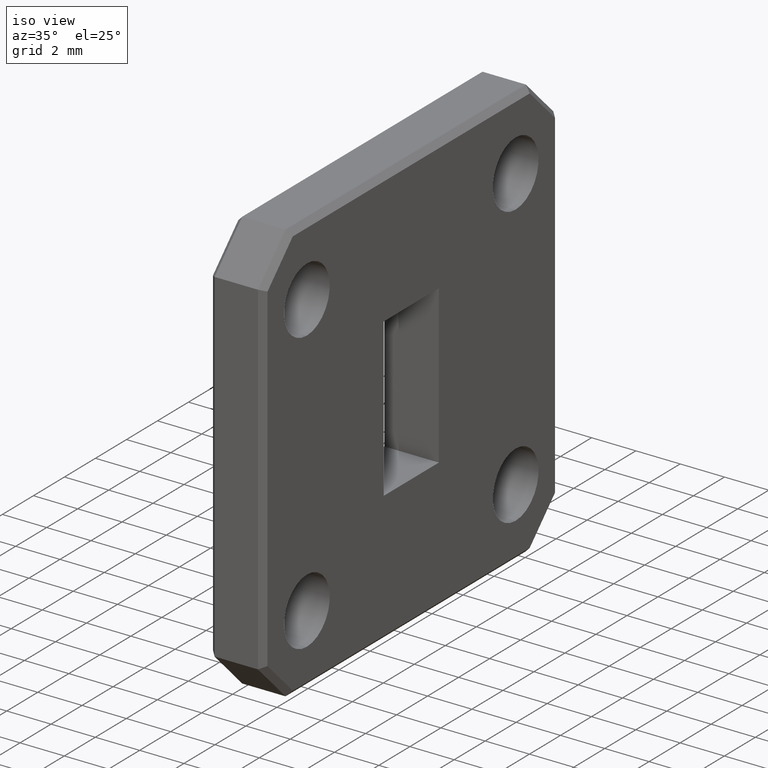
[diagram: clean part render]
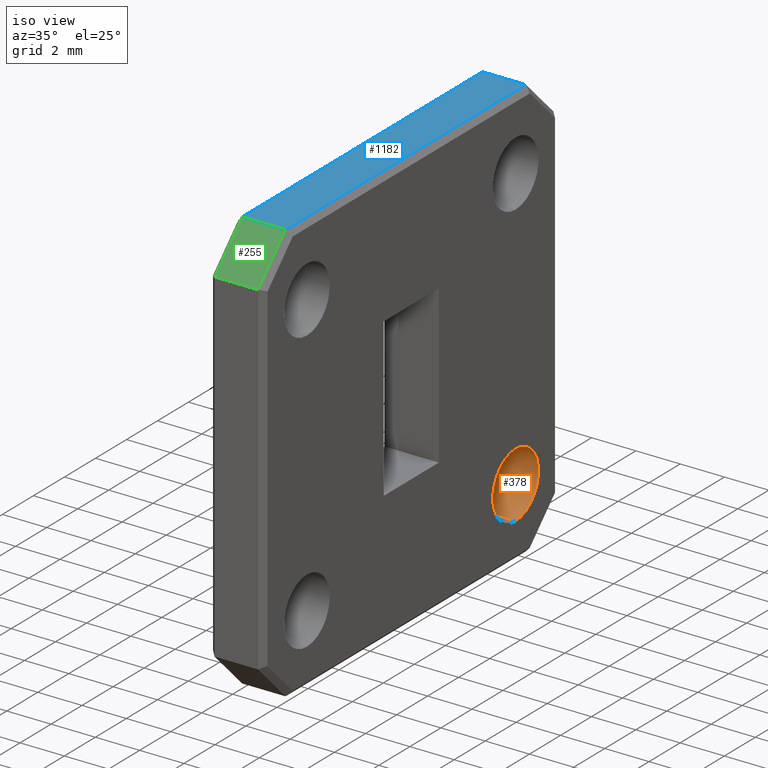
[diagram: same view with three faces highlighted in distinct colors, each labeled with its STEP entity id]
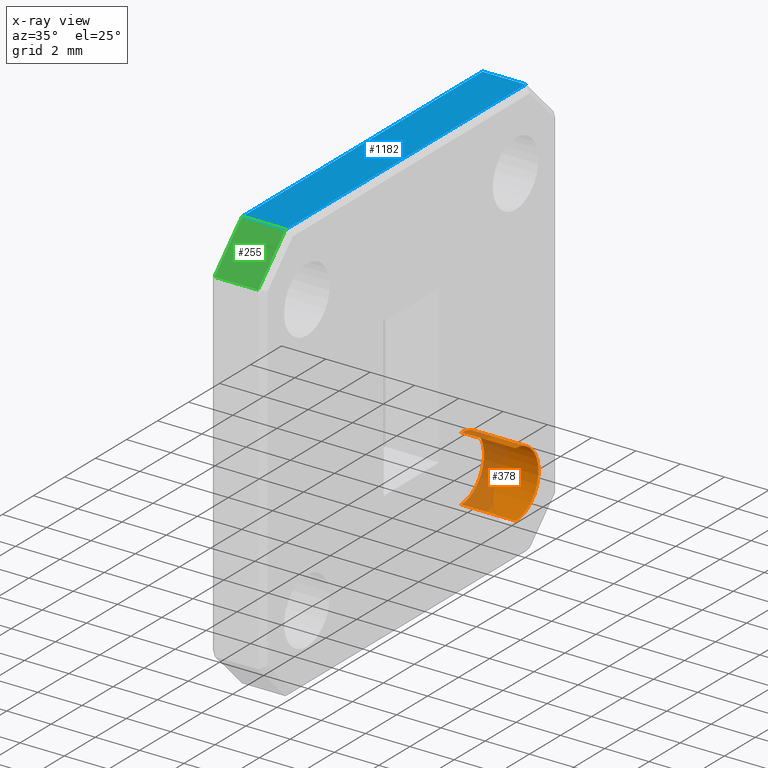
[diagram: x-ray of the same camera — body ghosted, the three highlighted faces saturated]
A machine part, iso view with three faces highlighted in distinct colors.
The next image is the same camera in x-ray (body ghosted, the three faces saturated) — at least one of them is partly hidden behind the body in this view.
Their STEP definitions:

[orange] entity #378 — the highlighted cylindrical surface (partial cylindrical patch) has radius 1.4732 mm, axis along (1, -0, -0).
#11 = DIRECTION ( 'NONE',  ( 0.000000000000000000, 0.000000000000000000, -1.000000000000000000 ) ) ;
#32 = CIRCLE ( 'NONE', #738, 0.05799999999999969763 ) ;
#39 = ORIENTED_EDGE ( 'NONE', *, *, #572, .T. ) ;
#91 = CARTESIAN_POINT ( 'NONE',  ( 0.09700000000000004452, 0.2650000000000000133, -0.1920000000000004758 ) ) ;
#112 = CYLINDRICAL_SURFACE ( 'NONE', #1029, 0.05799999999999969763 ) ;
#145 = EDGE_LOOP ( 'NONE', ( #801, #327, #39, #790 ) ) ;
#207 = EDGE_CURVE ( 'NONE', #404, #1159, #282, .T. ) ;
#221 = DIRECTION ( 'NONE',  ( 1.000000000000000000, -0.000000000000000000, 0.000000000000000000 ) ) ;
#282 = LINE ( 'NONE', #659, #1048 ) ;
#327 = ORIENTED_EDGE ( 'NONE', *, *, #937, .F. ) ;
#350 = VERTEX_POINT ( 'NONE', #1125 ) ;
#378 = ADVANCED_FACE ( 'NONE', ( #678 ), #112, .F. ) ;
#404 = VERTEX_POINT ( 'NONE', #1130 ) ;
#445 = LINE ( 'NONE', #894, #540 ) ;
#477 = EDGE_CURVE ( 'NONE', #350, #1159, #1073, .T. ) ;
#481 = DIRECTION ( 'NONE',  ( 1.000000000000000000, -0.000000000000000000, -0.000000000000000000 ) ) ;
#490 = CARTESIAN_POINT ( 'NONE',  ( 0.09700000000000000289, 0.2650000000000000133, -0.2500000000000000000 ) ) ;
#511 = DIRECTION ( 'NONE',  ( 0.000000000000000000, 0.000000000000000000, -1.000000000000000000 ) ) ;
#540 = VECTOR ( 'NONE', #909, 39.37007874015748143 ) ;
#565 = DIRECTION ( 'NONE',  ( 1.000000000000000000, -0.000000000000000000, -0.000000000000000000 ) ) ;
#572 = EDGE_CURVE ( 'NONE', #1057, #350, #445, .T. ) ;
#601 = CARTESIAN_POINT ( 'NONE',  ( 0.000000000000000000, 0.2650000000000000133, -0.2500000000000000000 ) ) ;
#603 = DIRECTION ( 'NONE',  ( 1.000000000000000000, -0.000000000000000000, -0.000000000000000000 ) ) ;
#659 = CARTESIAN_POINT ( 'NONE',  ( 0.09700000000000000289, 0.2650000000000000133, -0.1920000000000002538 ) ) ;
#677 = AXIS2_PLACEMENT_3D ( 'NONE', #1040, #603, #865 ) ;
#678 = FACE_OUTER_BOUND ( 'NONE', #145, .T. ) ;
#738 = AXIS2_PLACEMENT_3D ( 'NONE', #601, #221, #511 ) ;
#790 = ORIENTED_EDGE ( 'NONE', *, *, #477, .T. ) ;
#801 = ORIENTED_EDGE ( 'NONE', *, *, #207, .F. ) ;
#865 = DIRECTION ( 'NONE',  ( 0.000000000000000000, 0.000000000000000000, -1.000000000000000000 ) ) ;
#894 = CARTESIAN_POINT ( 'NONE',  ( 0.09700000000000000289, 0.2650000000000000133, -0.3079999999999997184 ) ) ;
#909 = DIRECTION ( 'NONE',  ( 1.000000000000000000, -0.000000000000000000, -0.000000000000000000 ) ) ;
#937 = EDGE_CURVE ( 'NONE', #1057, #404, #32, .T. ) ;
#979 = CARTESIAN_POINT ( 'NONE',  ( 0.000000000000000000, 0.2650000000000000133, -0.3079999999999997184 ) ) ;
#1029 = AXIS2_PLACEMENT_3D ( 'NONE', #490, #481, #11 ) ;
#1040 = CARTESIAN_POINT ( 'NONE',  ( 0.09700000000000004452, 0.2650000000000000133, -0.2500000000000000000 ) ) ;
#1048 = VECTOR ( 'NONE', #565, 39.37007874015748143 ) ;
#1057 = VERTEX_POINT ( 'NONE', #979 ) ;
#1073 = CIRCLE ( 'NONE', #677, 0.05799999999999955885 ) ;
#1125 = CARTESIAN_POINT ( 'NONE',  ( 0.09700000000000004452, 0.2650000000000000133, -0.3079999999999995519 ) ) ;
#1130 = CARTESIAN_POINT ( 'NONE',  ( 0.000000000000000000, 0.2650000000000000133, -0.1920000000000002538 ) ) ;
#1159 = VERTEX_POINT ( 'NONE', #91 ) ;

[blue] entity #1182 — the highlighted planar face has unit normal (0, 0, -1).
#18 = CARTESIAN_POINT ( 'NONE',  ( 0.09700000000000000289, -0.3750000000000000555, 0.3749999999999999445 ) ) ;
#45 = DIRECTION ( 'NONE',  ( 0.000000000000000000, -1.000000000000000000, -1.821231995776175725E-16 ) ) ;
#78 = ORIENTED_EDGE ( 'NONE', *, *, #90, .T. ) ;
#90 = EDGE_CURVE ( 'NONE', #372, #237, #180, .T. ) ;
#96 = VECTOR ( 'NONE', #1085, 39.37007874015748143 ) ;
#109 = AXIS2_PLACEMENT_3D ( 'NONE', #18, #1111, #911 ) ;
#172 = LINE ( 'NONE', #899, #96 ) ;
#180 = LINE ( 'NONE', #1178, #247 ) ;
#185 = VERTEX_POINT ( 'NONE', #346 ) ;
#211 = LINE ( 'NONE', #921, #736 ) ;
#237 = VERTEX_POINT ( 'NONE', #238 ) ;
#238 = CARTESIAN_POINT ( 'NONE',  ( 0.009999999999999892655, 0.3050000000000001044, 0.3750000000000001110 ) ) ;
#247 = VECTOR ( 'NONE', #363, 39.37007874015748143 ) ;
#277 = PLANE ( 'NONE',  #109 ) ;
#281 = ORIENTED_EDGE ( 'NONE', *, *, #295, .T. ) ;
#294 = CARTESIAN_POINT ( 'NONE',  ( 0.009999999999999892655, -0.3049999999999996603, 0.3749999999999999445 ) ) ;
#295 = EDGE_CURVE ( 'NONE', #1155, #185, #211, .T. ) ;
#346 = CARTESIAN_POINT ( 'NONE',  ( 0.08700000000000010503, -0.3049999999999996603, 0.3749999999999999445 ) ) ;
#363 = DIRECTION ( 'NONE',  ( -1.000000000000000000, 0.000000000000000000, 0.000000000000000000 ) ) ;
#372 = VERTEX_POINT ( 'NONE', #569 ) ;
#452 = VECTOR ( 'NONE', #45, 39.37007874015748143 ) ;
#461 = ORIENTED_EDGE ( 'NONE', *, *, #970, .T. ) ;
#569 = CARTESIAN_POINT ( 'NONE',  ( 0.08700000000000010503, 0.3050000000000001044, 0.3750000000000001110 ) ) ;
#736 = VECTOR ( 'NONE', #848, 39.37007874015748143 ) ;
#750 = ORIENTED_EDGE ( 'NONE', *, *, #1069, .T. ) ;
#848 = DIRECTION ( 'NONE',  ( 1.000000000000000000, 0.000000000000000000, 0.000000000000000000 ) ) ;
#867 = EDGE_LOOP ( 'NONE', ( #281, #750, #78, #461 ) ) ;
#899 = CARTESIAN_POINT ( 'NONE',  ( 0.08700000000000010503, 0.3049999999999998268, 0.3750000000000001110 ) ) ;
#911 = DIRECTION ( 'NONE',  ( 0.000000000000000000, 1.000000000000000000, 1.821231995776175725E-16 ) ) ;
#921 = CARTESIAN_POINT ( 'NONE',  ( 0.09700000000000000289, -0.3049999999999996603, 0.3749999999999999445 ) ) ;
#970 = EDGE_CURVE ( 'NONE', #237, #1155, #1150, .T. ) ;
#1004 = FACE_OUTER_BOUND ( 'NONE', #867, .T. ) ;
#1039 = CARTESIAN_POINT ( 'NONE',  ( 0.009999999999999892655, -0.3750000000000000555, 0.3749999999999999445 ) ) ;
#1069 = EDGE_CURVE ( 'NONE', #185, #372, #172, .T. ) ;
#1085 = DIRECTION ( 'NONE',  ( 0.000000000000000000, 1.000000000000000000, 1.821231995776175725E-16 ) ) ;
#1111 = DIRECTION ( 'NONE',  ( 0.000000000000000000, 1.821231995776175725E-16, -1.000000000000000000 ) ) ;
#1150 = LINE ( 'NONE', #1039, #452 ) ;
#1155 = VERTEX_POINT ( 'NONE', #294 ) ;
#1178 = CARTESIAN_POINT ( 'NONE',  ( 0.09700000000000000289, 0.3050000000000001044, 0.3750000000000001110 ) ) ;
#1182 = ADVANCED_FACE ( 'NONE', ( #1004 ), #277, .F. ) ;

[green] entity #255 — the highlighted planar face has unit normal (0, 0.7071, -0.7071).
#21 = EDGE_LOOP ( 'NONE', ( #311, #65, #1103, #164 ) ) ;
#65 = ORIENTED_EDGE ( 'NONE', *, *, #505, .T. ) ;
#88 = VERTEX_POINT ( 'NONE', #649 ) ;
#108 = VECTOR ( 'NONE', #959, 39.37007874015748143 ) ;
#129 = LINE ( 'NONE', #607, #108 ) ;
#146 = VECTOR ( 'NONE', #313, 39.37007874015748143 ) ;
#164 = ORIENTED_EDGE ( 'NONE', *, *, #456, .T. ) ;
#185 = VERTEX_POINT ( 'NONE', #346 ) ;
#211 = LINE ( 'NONE', #921, #736 ) ;
#255 = ADVANCED_FACE ( 'NONE', ( #531 ), #351, .F. ) ;
#260 = DIRECTION ( 'NONE',  ( 0.000000000000000000, 0.7071067811865467956, -0.7071067811865482389 ) ) ;
#294 = CARTESIAN_POINT ( 'NONE',  ( 0.009999999999999892655, -0.3049999999999996603, 0.3749999999999999445 ) ) ;
#295 = EDGE_CURVE ( 'NONE', #1155, #185, #211, .T. ) ;
#311 = ORIENTED_EDGE ( 'NONE', *, *, #854, .F. ) ;
#312 = CARTESIAN_POINT ( 'NONE',  ( 0.08700000000000010503, -0.3750000000000000555, 0.3049999999999997713 ) ) ;
#313 = DIRECTION ( 'NONE',  ( -0.000000000000000000, -0.7071067811865482389, -0.7071067811865467956 ) ) ;
#346 = CARTESIAN_POINT ( 'NONE',  ( 0.08700000000000010503, -0.3049999999999996603, 0.3749999999999999445 ) ) ;
#351 = PLANE ( 'NONE',  #716 ) ;
#410 = LINE ( 'NONE', #597, #1052 ) ;
#456 = EDGE_CURVE ( 'NONE', #1155, #88, #683, .T. ) ;
#505 = EDGE_CURVE ( 'NONE', #884, #185, #410, .T. ) ;
#531 = FACE_OUTER_BOUND ( 'NONE', #21, .T. ) ;
#597 = CARTESIAN_POINT ( 'NONE',  ( 0.08700000000000010503, -0.3750000000000000555, 0.3049999999999997713 ) ) ;
#607 = CARTESIAN_POINT ( 'NONE',  ( 0.09700000000000000289, -0.3750000000000000555, 0.3049999999999997713 ) ) ;
#633 = DIRECTION ( 'NONE',  ( -1.000000000000000000, 0.000000000000000000, 0.000000000000000000 ) ) ;
#649 = CARTESIAN_POINT ( 'NONE',  ( 0.009999999999999892655, -0.3750000000000000555, 0.3049999999999997713 ) ) ;
#683 = LINE ( 'NONE', #1135, #146 ) ;
#716 = AXIS2_PLACEMENT_3D ( 'NONE', #1080, #260, #633 ) ;
#736 = VECTOR ( 'NONE', #848, 39.37007874015748143 ) ;
#848 = DIRECTION ( 'NONE',  ( 1.000000000000000000, 0.000000000000000000, 0.000000000000000000 ) ) ;
#854 = EDGE_CURVE ( 'NONE', #884, #88, #129, .T. ) ;
#884 = VERTEX_POINT ( 'NONE', #312 ) ;
#921 = CARTESIAN_POINT ( 'NONE',  ( 0.09700000000000000289, -0.3049999999999996603, 0.3749999999999999445 ) ) ;
#954 = DIRECTION ( 'NONE',  ( 0.000000000000000000, 0.7071067811865482389, 0.7071067811865467956 ) ) ;
#959 = DIRECTION ( 'NONE',  ( -1.000000000000000000, 0.000000000000000000, 0.000000000000000000 ) ) ;
#1052 = VECTOR ( 'NONE', #954, 39.37007874015748143 ) ;
#1080 = CARTESIAN_POINT ( 'NONE',  ( 0.09700000000000000289, -0.3750000000000000555, 0.3049999999999997713 ) ) ;
#1103 = ORIENTED_EDGE ( 'NONE', *, *, #295, .F. ) ;
#1135 = CARTESIAN_POINT ( 'NONE',  ( 0.009999999999999892655, -0.3750000000000000555, 0.3049999999999997713 ) ) ;
#1155 = VERTEX_POINT ( 'NONE', #294 ) ;